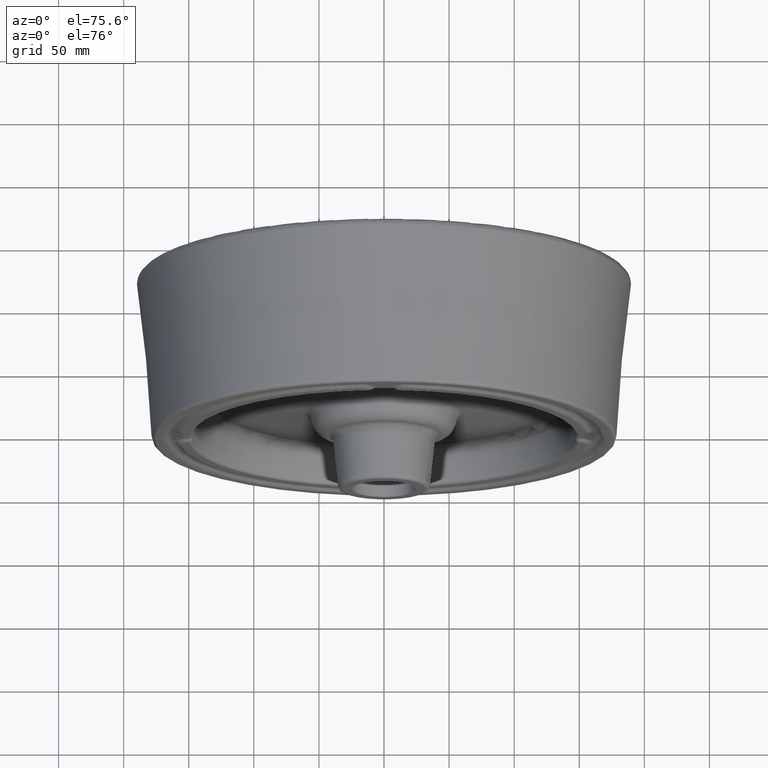
[diagram: clean part render]
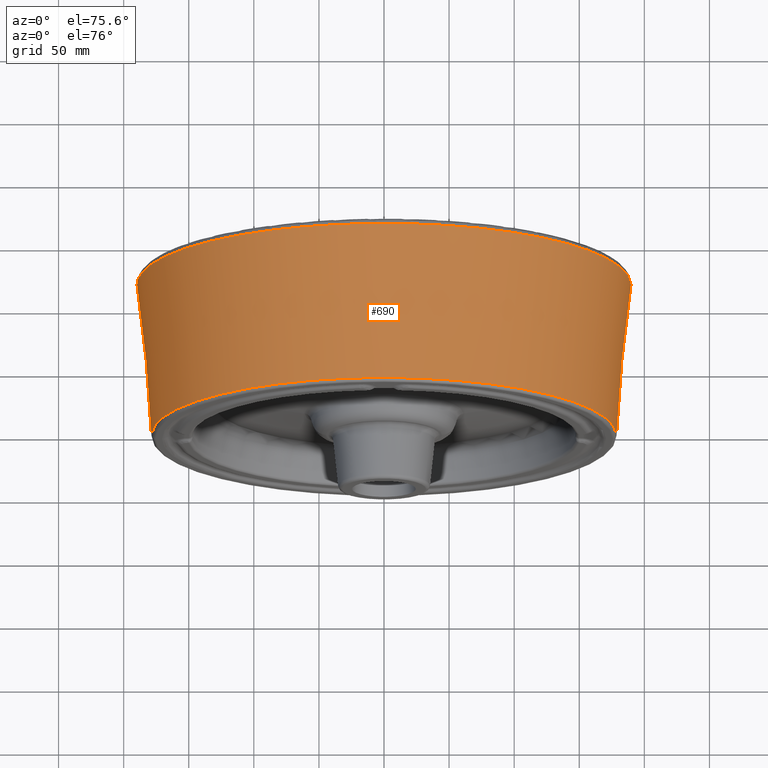
[diagram: same view with one face highlighted and labeled with its STEP entity id]
A machine part, auxiliary view. The second image highlights one B-rep face of the part: STEP entity #690.
In plain terms, the highlighted face is a SurfaceOfRevolution surface.
Its self-contained STEP definition (entity closure, byte-faithful):
#162=SURFACE_OF_REVOLUTION('',#2095,#182);
#182=AXIS1_PLACEMENT('',#8716,#7068);
#590=(
BOUNDED_CURVE()
B_SPLINE_CURVE(3,(#8708,#8709,#8710,#8711),.UNSPECIFIED.,.F.,.F.)
B_SPLINE_CURVE_WITH_KNOTS((4,4),(0.,1.),.UNSPECIFIED.)
CURVE()
GEOMETRIC_REPRESENTATION_ITEM()
RATIONAL_B_SPLINE_CURVE((1.,0.333333333333333,0.333333333333333,1.))
REPRESENTATION_ITEM('')
);
#690=ADVANCED_FACE('',(#1259),#162,.T.);
#1259=FACE_OUTER_BOUND('',#1674,.T.);
#1674=EDGE_LOOP('',(#2589,#2590,#2591,#2592));
#2092=B_SPLINE_CURVE_WITH_KNOTS('',3,(#8689,#8690,#8691,#8692),
 .UNSPECIFIED.,.F.,.F.,(4,4),(0.,1.),.UNSPECIFIED.);
#2093=B_SPLINE_CURVE_WITH_KNOTS('',3,(#8699,#8700,#8701,#8702),
 .UNSPECIFIED.,.F.,.F.,(4,4),(0.,1.),.UNSPECIFIED.);
#2095=B_SPLINE_CURVE_WITH_KNOTS('',3,(#8712,#8713,#8714,#8715),
 .UNSPECIFIED.,.F.,.F.,(4,4),(0.,1.),.UNSPECIFIED.);
#2589=ORIENTED_EDGE('',*,*,#4966,.T.);
#2590=ORIENTED_EDGE('',*,*,#4967,.T.);
#2591=ORIENTED_EDGE('',*,*,#4964,.F.);
#2592=ORIENTED_EDGE('',*,*,#4961,.F.);
#4407=VERTEX_POINT('',#8682);
#4408=VERTEX_POINT('',#8684);
#4409=VERTEX_POINT('',#8693);
#4410=VERTEX_POINT('',#8698);
#4961=EDGE_CURVE('',#4407,#4408,#5878,.T.);
#4964=EDGE_CURVE('',#4408,#4409,#2092,.T.);
#4966=EDGE_CURVE('',#4407,#4410,#2093,.T.);
#4967=EDGE_CURVE('',#4410,#4409,#590,.T.);
#5878=CIRCLE('',#6314,178.6502046978);
#6314=AXIS2_PLACEMENT_3D('',#8683,#7057,#7058);
#7057=DIRECTION('',(0.,-1.,0.));
#7058=DIRECTION('',(1.,0.,-4.250779013297E-013));
#7068=DIRECTION('',(0.,-1.,0.));
#8682=CARTESIAN_POINT('',(178.6502046978,2.840096836217,-7.594025408508E-011));
#8683=CARTESIAN_POINT('',(0.,2.840096836217,0.));
#8684=CARTESIAN_POINT('',(-178.6502046978,2.840096836217,3.272367003234E-011));
#8689=CARTESIAN_POINT('',(-178.6502046978,2.840096836216,2.717484570702E-011));
#8690=CARTESIAN_POINT('',(-180.7797362115,42.73619975916,2.71755306166E-011));
#8691=CARTESIAN_POINT('',(-183.752980631,82.68588394824,1.151107335372E-011));
#8692=CARTESIAN_POINT('',(-189.7522881151,122.1800048471,1.151300287817E-011));
#8693=CARTESIAN_POINT('',(-189.7523006753,122.1800764748,2.323795476529E-014));
#8698=CARTESIAN_POINT('',(189.7523006753,122.1800764748,0.));
#8699=CARTESIAN_POINT('',(178.6502046978,2.840096836216,-2.71567768273E-011));
#8700=CARTESIAN_POINT('',(180.779736264,42.73620074328,-2.71567768273E-011));
#8701=CARTESIAN_POINT('',(183.7529803338,82.68588299651,-1.148405066755E-011));
#8702=CARTESIAN_POINT('',(189.7522881151,122.1800048471,-1.148405066755E-011));
#8708=CARTESIAN_POINT('',(189.752300675295,122.180076474801,0.));
#8709=CARTESIAN_POINT('',(189.752300675295,122.180076474801,379.504601350589));
#8710=CARTESIAN_POINT('',(-189.752300675295,122.180076474801,379.504601350589));
#8711=CARTESIAN_POINT('',(-189.752300675295,122.180076474801,2.32379547652846E-014));
#8712=CARTESIAN_POINT('',(189.7523255809,122.180240431,0.));
#8713=CARTESIAN_POINT('',(183.7529939604,82.68604225875,0.));
#8714=CARTESIAN_POINT('',(180.7797404765,42.73627966245,0.));
#8715=CARTESIAN_POINT('',(178.6502046978,2.840096836217,0.));
#8716=CARTESIAN_POINT('',(2.187684007943E-014,133.35,0.));